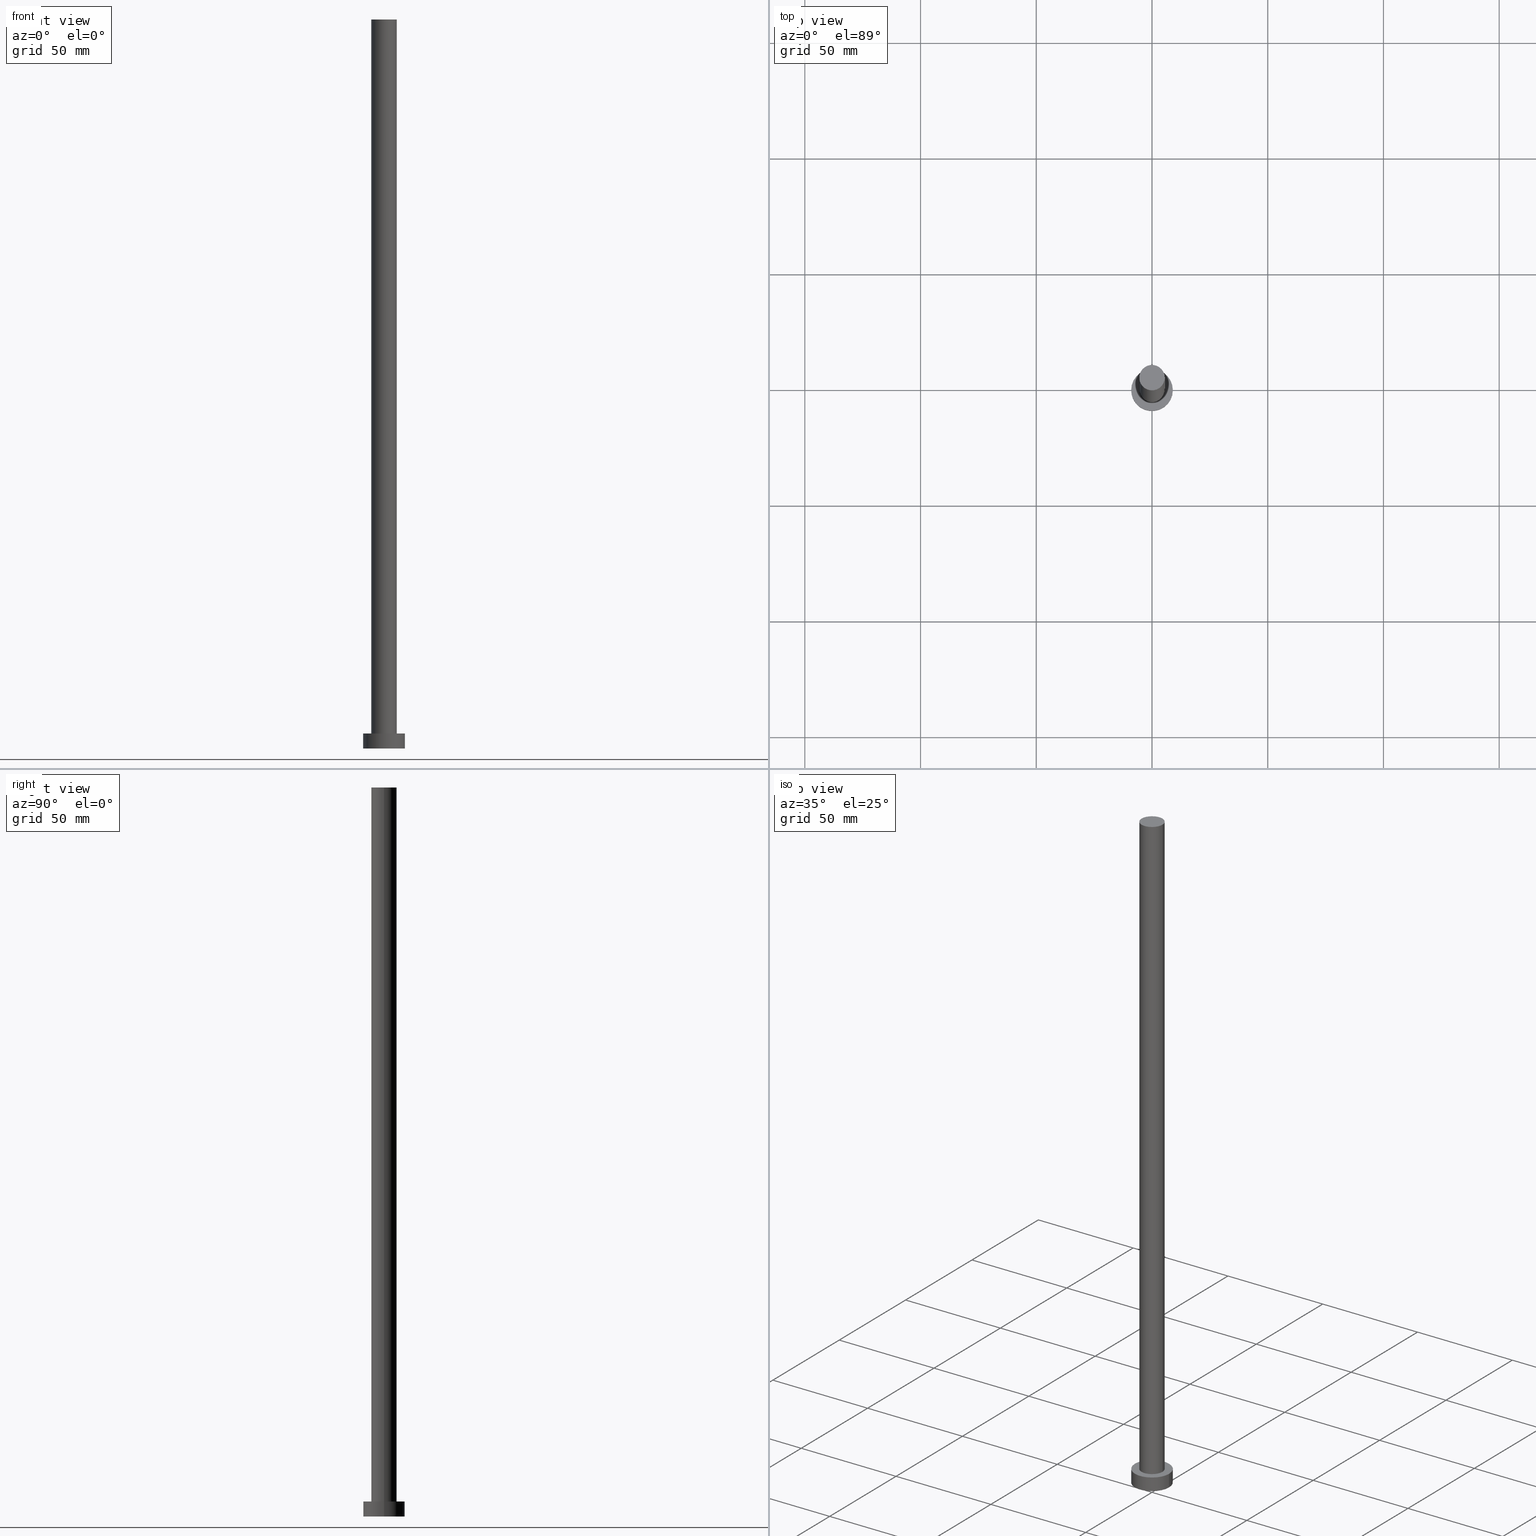
[diagram: canonical four-view strip — front | top / right | iso, engineering-drawing reading convention]
A machine part, canonical four-view strip (front | top / right | iso — engineering-drawing reading convention). The complete STEP part file that produces these views, byte-faithful:
ISO-10303-21;
HEADER;
FILE_DESCRIPTION (( 'STEP AP203' ),
    '1' );
FILE_NAME ('ee31.STEP',
    '2023-02-13T12:19:42',
    ( '' ),
    ( '' ),
    'SwSTEP 2.0',
    'SolidWorks 2019',
    '' );
FILE_SCHEMA (( 'CONFIG_CONTROL_DESIGN' ));
ENDSEC;

DATA;
#1 = CARTESIAN_POINT ( 'NONE',  ( 5.500000000000000000, 6.735557395310441037E-16, 315.0000000000000000 ) ) ;
#2 = CYLINDRICAL_SURFACE ( 'NONE', #96, 5.500000000000000000 ) ;
#3 = CC_DESIGN_PERSON_AND_ORGANIZATION_ASSIGNMENT ( #193, #90, ( #102 ) ) ;
#4 = DIRECTION ( 'NONE',  ( 0.000000000000000000, 0.000000000000000000, 1.000000000000000000 ) ) ;
#5 = ADVANCED_BREP_SHAPE_REPRESENTATION ( 'ee31', ( #154, #229 ), #168 ) ;
#6 = DIRECTION ( 'NONE',  ( 0.000000000000000000, 0.000000000000000000, 1.000000000000000000 ) ) ;
#7 = ORIENTED_EDGE ( 'NONE', *, *, #35, .T. ) ;
#8 = CARTESIAN_POINT ( 'NONE',  ( 0.000000000000000000, 0.000000000000000000, 315.0000000000000000 ) ) ;
#9 = CIRCLE ( 'NONE', #122, 9.000000000000000000 ) ;
#10 = PLANE ( 'NONE',  #133 ) ;
#11 = EDGE_CURVE ( 'NONE', #101, #178, #167, .T. ) ;
#12 = CARTESIAN_POINT ( 'NONE',  ( 0.000000000000000000, 0.000000000000000000, 0.000000000000000000 ) ) ;
#13 = DATE_AND_TIME ( #126, #185 ) ;
#14 = PRODUCT_DEFINITION ( 'NEZN�M�', '', #102, #181 ) ;
#15 = APPROVAL_DATE_TIME ( #30, #63 ) ;
#16 = APPROVAL_STATUS ( 'not_yet_approved' ) ;
#17 = EDGE_LOOP ( 'NONE', ( #105, #248, #179, #210 ) ) ;
#18 = SECURITY_CLASSIFICATION_LEVEL ( 'unclassified' ) ;
#19 = DIRECTION ( 'NONE',  ( 0.000000000000000000, 0.000000000000000000, 1.000000000000000000 ) ) ;
#20 = CARTESIAN_POINT ( 'NONE',  ( 0.000000000000000000, 0.000000000000000000, 315.0000000000000000 ) ) ;
#21 = ORIENTED_EDGE ( 'NONE', *, *, #35, .F. ) ;
#22 = DIRECTION ( 'NONE',  ( 1.000000000000000000, 0.000000000000000000, 0.000000000000000000 ) ) ;
#23 = DIRECTION ( 'NONE',  ( 0.000000000000000000, 0.000000000000000000, 1.000000000000000000 ) ) ;
#24 = EDGE_CURVE ( 'NONE', #101, #212, #144, .T. ) ;
#25 = FACE_OUTER_BOUND ( 'NONE', #141, .T. ) ;
#26 = PRODUCT_RELATED_PRODUCT_CATEGORY ( 'detail', '', ( #83 ) ) ;
#27 = CARTESIAN_POINT ( 'NONE',  ( -5.500000000000000000, 0.000000000000000000, 315.0000000000000000 ) ) ;
#28 = CALENDAR_DATE ( 2023, 13, 2 ) ;
#29 = LOCAL_TIME ( 13, 19, 42.00000000000000000, #194 ) ;
#30 = DATE_AND_TIME ( #28, #174 ) ;
#31 = EDGE_LOOP ( 'NONE', ( #238, #199 ) ) ;
#32 = CC_DESIGN_PERSON_AND_ORGANIZATION_ASSIGNMENT ( #232, #249, ( #83 ) ) ;
#33 = FACE_OUTER_BOUND ( 'NONE', #17, .T. ) ;
#34 = CYLINDRICAL_SURFACE ( 'NONE', #226, 9.000000000000000000 ) ;
#35 = EDGE_CURVE ( 'NONE', #244, #197, #142, .T. ) ;
#36 = ORIENTED_EDGE ( 'NONE', *, *, #111, .F. ) ;
#37 = CIRCLE ( 'NONE', #157, 9.000000000000000000 ) ;
#38 = EDGE_LOOP ( 'NONE', ( #162, #231 ) ) ;
#39 = PERSON_AND_ORGANIZATION ( #118, #202 ) ;
#40 = DIRECTION ( 'NONE',  ( -0.000000000000000000, -0.000000000000000000, -1.000000000000000000 ) ) ;
#41 = AXIS2_PLACEMENT_3D ( 'NONE', #215, #128, #55 ) ;
#42 = CIRCLE ( 'NONE', #143, 5.500000000000000000 ) ;
#43 = CYLINDRICAL_SURFACE ( 'NONE', #57, 9.000000000000000000 ) ;
#44 = ORIENTED_EDGE ( 'NONE', *, *, #108, .F. ) ;
#45 = FACE_OUTER_BOUND ( 'NONE', #125, .T. ) ;
#46 = CARTESIAN_POINT ( 'NONE',  ( 5.500000000000000000, 6.735557395310441037E-16, 315.0000000000000000 ) ) ;
#47 = DIRECTION ( 'NONE',  ( 0.000000000000000000, 0.000000000000000000, 1.000000000000000000 ) ) ;
#48 = DIRECTION ( 'NONE',  ( 1.000000000000000000, 0.000000000000000000, 0.000000000000000000 ) ) ;
#49 = COORDINATED_UNIVERSAL_TIME_OFFSET ( 1, 0, .AHEAD. ) ;
#50 = PERSON_AND_ORGANIZATION_ROLE ( 'design_supplier' ) ;
#51 = ADVANCED_FACE ( 'NONE', ( #77 ), #2, .T. ) ;
#52 = MECHANICAL_CONTEXT ( 'NONE', #176, 'mechanical' ) ;
#53 = VECTOR ( 'NONE', #138, 1000.000000000000000 ) ;
#54 = EDGE_CURVE ( 'NONE', #197, #244, #207, .T. ) ;
#55 = DIRECTION ( 'NONE',  ( 1.000000000000000000, 0.000000000000000000, 0.000000000000000000 ) ) ;
#56 = EDGE_LOOP ( 'NONE', ( #89, #36, #146, #94 ) ) ;
#57 = AXIS2_PLACEMENT_3D ( 'NONE', #119, #120, #82 ) ;
#58 = EDGE_CURVE ( 'NONE', #244, #236, #112, .T. ) ;
#59 = PLANE ( 'NONE',  #74 ) ;
#60 = UNCERTAINTY_MEASURE_WITH_UNIT (LENGTH_MEASURE( 1.000000000000000082E-05 ), #225, 'distance_accuracy_value', 'NONE');
#61 = CARTESIAN_POINT ( 'NONE',  ( 0.000000000000000000, 0.000000000000000000, 315.0000000000000000 ) ) ;
#62 = DIRECTION ( 'NONE',  ( -1.000000000000000000, 0.000000000000000000, 0.000000000000000000 ) ) ;
#63 = APPROVAL ( #124, 'NEUR�EN�' ) ;
#64 = DIRECTION ( 'NONE',  ( 1.000000000000000000, 0.000000000000000000, 0.000000000000000000 ) ) ;
#65 = DIRECTION ( 'NONE',  ( 0.000000000000000000, 0.000000000000000000, 1.000000000000000000 ) ) ;
#66 = CC_DESIGN_PERSON_AND_ORGANIZATION_ASSIGNMENT ( #189, #166, ( #14 ) ) ;
#67 = CALENDAR_DATE ( 2023, 13, 2 ) ;
#68 = DATE_AND_TIME ( #164, #29 ) ;
#69 = CC_DESIGN_APPROVAL ( #63, ( #102 ) ) ;
#70 = CC_DESIGN_PERSON_AND_ORGANIZATION_ASSIGNMENT ( #252, #50, ( #102 ) ) ;
#71 = PERSON_AND_ORGANIZATION_ROLE ( 'classification_officer' ) ;
#72 = ORIENTED_EDGE ( 'NONE', *, *, #24, .T. ) ;
#73 = SECURITY_CLASSIFICATION ( '', '', #18 ) ;
#74 = AXIS2_PLACEMENT_3D ( 'NONE', #152, #218, #206 ) ;
#75 = DIRECTION ( 'NONE',  ( -0.000000000000000000, -0.000000000000000000, -1.000000000000000000 ) ) ;
#76 = APPROVAL_PERSON_ORGANIZATION ( #250, #230, #109 ) ;
#77 = FACE_OUTER_BOUND ( 'NONE', #56, .T. ) ;
#78 = CARTESIAN_POINT ( 'NONE',  ( 9.000000000000000000, 1.102182119232617517E-15, 6.500000000000000000 ) ) ;
#79 = CARTESIAN_POINT ( 'NONE',  ( 5.500000000000000000, 6.735557395310441037E-16, 6.500000000000000000 ) ) ;
#80 = ORIENTED_EDGE ( 'NONE', *, *, #11, .F. ) ;
#81 = CARTESIAN_POINT ( 'NONE',  ( 0.000000000000000000, 0.000000000000000000, 6.500000000000000000 ) ) ;
#82 = DIRECTION ( 'NONE',  ( -1.000000000000000000, 0.000000000000000000, 0.000000000000000000 ) ) ;
#83 = PRODUCT ( 'ee31', 'ee31', '', ( #52 ) ) ;
#84 = CARTESIAN_POINT ( 'NONE',  ( 9.000000000000000000, 1.102182119232617517E-15, 6.500000000000000000 ) ) ;
#85 = CC_DESIGN_DATE_AND_TIME_ASSIGNMENT ( #165, #150, ( #73 ) ) ;
#86 = CC_DESIGN_APPROVAL ( #230, ( #14 ) ) ;
#87 = PERSON_AND_ORGANIZATION ( #118, #202 ) ;
#88 = CARTESIAN_POINT ( 'NONE',  ( 0.000000000000000000, 0.000000000000000000, 0.000000000000000000 ) ) ;
#89 = ORIENTED_EDGE ( 'NONE', *, *, #24, .F. ) ;
#90 = PERSON_AND_ORGANIZATION_ROLE ( 'creator' ) ;
#91 = ADVANCED_FACE ( 'NONE', ( #33 ), #34, .T. ) ;
#92 = PERSON_AND_ORGANIZATION ( #118, #202 ) ;
#93 = DIRECTION ( 'NONE',  ( 0.000000000000000000, 0.000000000000000000, 1.000000000000000000 ) ) ;
#94 = ORIENTED_EDGE ( 'NONE', *, *, #184, .T. ) ;
#95 = AXIS2_PLACEMENT_3D ( 'NONE', #8, #243, #160 ) ;
#96 = AXIS2_PLACEMENT_3D ( 'NONE', #151, #171, #241 ) ;
#97 = DIRECTION ( 'NONE',  ( 1.000000000000000000, 0.000000000000000000, 0.000000000000000000 ) ) ;
#98 = DATE_AND_TIME ( #200, #254 ) ;
#99 = DIRECTION ( 'NONE',  ( 0.000000000000000000, 0.000000000000000000, 1.000000000000000000 ) ) ;
#100 = DIRECTION ( 'NONE',  ( -0.000000000000000000, -0.000000000000000000, -1.000000000000000000 ) ) ;
#101 = VERTEX_POINT ( 'NONE', #46 ) ;
#102 = PRODUCT_DEFINITION_FORMATION_WITH_SPECIFIED_SOURCE ( 'LIBOVOLN�', '', #83, .NOT_KNOWN. ) ;
#103 = CARTESIAN_POINT ( 'NONE',  ( -9.000000000000000000, 0.000000000000000000, 0.000000000000000000 ) ) ;
#104 = CARTESIAN_POINT ( 'NONE',  ( -5.500000000000000000, 0.000000000000000000, 6.500000000000000000 ) ) ;
#105 = ORIENTED_EDGE ( 'NONE', *, *, #54, .F. ) ;
#106 = ADVANCED_FACE ( 'NONE', ( #132 ), #59, .F. ) ;
#107 = APPLICATION_PROTOCOL_DEFINITION ( 'international standard', 'config_control_design', 1994, #176 ) ;
#108 = EDGE_CURVE ( 'NONE', #178, #216, #245, .T. ) ;
#109 = APPROVAL_ROLE ( '' ) ;
#110 = VERTEX_POINT ( 'NONE', #182 ) ;
#111 = EDGE_CURVE ( 'NONE', #178, #101, #153, .T. ) ;
#112 = LINE ( 'NONE', #214, #219 ) ;
#113 = AXIS2_PLACEMENT_3D ( 'NONE', #20, #93, #22 ) ;
#114 = ADVANCED_FACE ( 'NONE', ( #137 ), #220, .T. ) ;
#115 = ORIENTED_EDGE ( 'NONE', *, *, #251, .F. ) ;
#116 = COORDINATED_UNIVERSAL_TIME_OFFSET ( 1, 0, .AHEAD. ) ;
#117 = FACE_OUTER_BOUND ( 'NONE', #156, .T. ) ;
#118 = PERSON ( 'NEUR�EN�', 'NEUR�EN�', 'NEUR�EN�', ('NEUR�EN�'), ('NEUR�EN�'), ('NEUR�EN�') ) ;
#119 = CARTESIAN_POINT ( 'NONE',  ( 0.000000000000000000, 0.000000000000000000, 6.500000000000000000 ) ) ;
#120 = DIRECTION ( 'NONE',  ( -0.000000000000000000, -0.000000000000000000, -1.000000000000000000 ) ) ;
#121 = PLANE ( 'NONE',  #149 ) ;
#122 = AXIS2_PLACEMENT_3D ( 'NONE', #123, #99, #203 ) ;
#123 = CARTESIAN_POINT ( 'NONE',  ( 0.000000000000000000, 0.000000000000000000, 0.000000000000000000 ) ) ;
#124 = APPROVAL_STATUS ( 'not_yet_approved' ) ;
#125 = EDGE_LOOP ( 'NONE', ( #115, #21, #177, #239 ) ) ;
#126 = CALENDAR_DATE ( 2023, 13, 2 ) ;
#127 = ADVANCED_FACE ( 'NONE', ( #209, #117 ), #10, .T. ) ;
#128 = DIRECTION ( 'NONE',  ( 0.000000000000000000, 0.000000000000000000, 1.000000000000000000 ) ) ;
#129 = ORIENTED_EDGE ( 'NONE', *, *, #111, .T. ) ;
#130 = EDGE_CURVE ( 'NONE', #212, #216, #42, .T. ) ;
#131 = APPROVAL_STATUS ( 'not_yet_approved' ) ;
#132 = FACE_OUTER_BOUND ( 'NONE', #31, .T. ) ;
#133 = AXIS2_PLACEMENT_3D ( 'NONE', #81, #47, #201 ) ;
#134 = CARTESIAN_POINT ( 'NONE',  ( -5.500000000000000000, 0.000000000000000000, 315.0000000000000000 ) ) ;
#135 = CC_DESIGN_APPROVAL ( #255, ( #73 ) ) ;
#136 = DIRECTION ( 'NONE',  ( 1.000000000000000000, 0.000000000000000000, 0.000000000000000000 ) ) ;
#137 = FACE_OUTER_BOUND ( 'NONE', #183, .T. ) ;
#138 = DIRECTION ( 'NONE',  ( -0.000000000000000000, -0.000000000000000000, -1.000000000000000000 ) ) ;
#139 = APPROVAL_DATE_TIME ( #98, #255 ) ;
#140 = APPROVAL_PERSON_ORGANIZATION ( #87, #63, #169 ) ;
#141 = EDGE_LOOP ( 'NONE', ( #129, #188 ) ) ;
#142 = CIRCLE ( 'NONE', #190, 9.000000000000000000 ) ;
#143 = AXIS2_PLACEMENT_3D ( 'NONE', #158, #23, #136 ) ;
#144 = LINE ( 'NONE', #1, #253 ) ;
#145 = EDGE_CURVE ( 'NONE', #110, #236, #9, .T. ) ;
#146 = ORIENTED_EDGE ( 'NONE', *, *, #108, .T. ) ;
#147 = CLOSED_SHELL ( 'NONE', ( #114, #91, #205, #127, #106, #51, #173 ) ) ;
#148 = CARTESIAN_POINT ( 'NONE',  ( 0.000000000000000000, 0.000000000000000000, 6.500000000000000000 ) ) ;
#149 = AXIS2_PLACEMENT_3D ( 'NONE', #208, #6, #180 ) ;
#150 = DATE_TIME_ROLE ( 'classification_date' ) ;
#151 = CARTESIAN_POINT ( 'NONE',  ( 0.000000000000000000, 0.000000000000000000, 315.0000000000000000 ) ) ;
#152 = CARTESIAN_POINT ( 'NONE',  ( 0.000000000000000000, 0.000000000000000000, 0.000000000000000000 ) ) ;
#153 = CIRCLE ( 'NONE', #95, 5.500000000000000000 ) ;
#154 = MANIFOLD_SOLID_BREP ( 'P�idat vysunut�m3', #147 ) ;
#155 = LINE ( 'NONE', #84, #53 ) ;
#156 = EDGE_LOOP ( 'NONE', ( #7, #204 ) ) ;
#157 = AXIS2_PLACEMENT_3D ( 'NONE', #12, #4, #64 ) ;
#158 = CARTESIAN_POINT ( 'NONE',  ( 0.000000000000000000, 0.000000000000000000, 6.500000000000000000 ) ) ;
#159 = SHAPE_DEFINITION_REPRESENTATION ( #222, #5 ) ;
#160 = DIRECTION ( 'NONE',  ( 1.000000000000000000, 0.000000000000000000, 0.000000000000000000 ) ) ;
#161 =( NAMED_UNIT ( * ) PLANE_ANGLE_UNIT ( ) SI_UNIT ( $, .RADIAN. ) );
#162 = ORIENTED_EDGE ( 'NONE', *, *, #184, .F. ) ;
#163 = APPROVAL_ROLE ( '' ) ;
#164 = CALENDAR_DATE ( 2023, 13, 2 ) ;
#165 = DATE_AND_TIME ( #67, #221 ) ;
#166 = PERSON_AND_ORGANIZATION_ROLE ( 'creator' ) ;
#167 = CIRCLE ( 'NONE', #113, 5.500000000000000000 ) ;
#168 =( GEOMETRIC_REPRESENTATION_CONTEXT ( 3 ) GLOBAL_UNCERTAINTY_ASSIGNED_CONTEXT ( ( #60 ) ) GLOBAL_UNIT_ASSIGNED_CONTEXT ( ( #225, #161, #235 ) ) REPRESENTATION_CONTEXT ( 'NONE', 'WORKASPACE' ) );
#169 = APPROVAL_ROLE ( '' ) ;
#170 = EDGE_CURVE ( 'NONE', #236, #110, #37, .T. ) ;
#171 = DIRECTION ( 'NONE',  ( -0.000000000000000000, -0.000000000000000000, -1.000000000000000000 ) ) ;
#172 = AXIS2_PLACEMENT_3D ( 'NONE', #61, #40, #62 ) ;
#173 = ADVANCED_FACE ( 'NONE', ( #25 ), #121, .T. ) ;
#174 = LOCAL_TIME ( 13, 19, 42.00000000000000000, #211 ) ;
#175 = CARTESIAN_POINT ( 'NONE',  ( 0.000000000000000000, 0.000000000000000000, 6.500000000000000000 ) ) ;
#176 = APPLICATION_CONTEXT ( 'configuration controlled 3d designs of mechanical parts and assemblies' ) ;
#177 = ORIENTED_EDGE ( 'NONE', *, *, #58, .T. ) ;
#178 = VERTEX_POINT ( 'NONE', #134 ) ;
#179 = ORIENTED_EDGE ( 'NONE', *, *, #145, .T. ) ;
#180 = DIRECTION ( 'NONE',  ( 1.000000000000000000, 0.000000000000000000, -0.000000000000000000 ) ) ;
#181 = DESIGN_CONTEXT ( 'detailed design', #233, 'design' ) ;
#182 = CARTESIAN_POINT ( 'NONE',  ( 9.000000000000000000, 1.102182119232617517E-15, 0.000000000000000000 ) ) ;
#183 = EDGE_LOOP ( 'NONE', ( #80, #72, #217, #44 ) ) ;
#184 = EDGE_CURVE ( 'NONE', #216, #212, #191, .T. ) ;
#185 = LOCAL_TIME ( 13, 19, 42.00000000000000000, #49 ) ;
#186 = DIRECTION ( 'NONE',  ( -0.000000000000000000, -0.000000000000000000, -1.000000000000000000 ) ) ;
#187 = CARTESIAN_POINT ( 'NONE',  ( -9.000000000000000000, 0.000000000000000000, 6.500000000000000000 ) ) ;
#188 = ORIENTED_EDGE ( 'NONE', *, *, #11, .T. ) ;
#189 = PERSON_AND_ORGANIZATION ( #118, #202 ) ;
#190 = AXIS2_PLACEMENT_3D ( 'NONE', #148, #240, #97 ) ;
#191 = CIRCLE ( 'NONE', #196, 5.500000000000000000 ) ;
#192 = APPROVAL_DATE_TIME ( #68, #230 ) ;
#193 = PERSON_AND_ORGANIZATION ( #118, #202 ) ;
#194 = COORDINATED_UNIVERSAL_TIME_OFFSET ( 1, 0, .AHEAD. ) ;
#195 = CC_DESIGN_PERSON_AND_ORGANIZATION_ASSIGNMENT ( #92, #71, ( #73 ) ) ;
#196 = AXIS2_PLACEMENT_3D ( 'NONE', #224, #65, #227 ) ;
#197 = VERTEX_POINT ( 'NONE', #78 ) ;
#198 = DIRECTION ( 'NONE',  ( -0.000000000000000000, -0.000000000000000000, -1.000000000000000000 ) ) ;
#199 = ORIENTED_EDGE ( 'NONE', *, *, #145, .F. ) ;
#200 = CALENDAR_DATE ( 2023, 13, 2 ) ;
#201 = DIRECTION ( 'NONE',  ( 1.000000000000000000, 0.000000000000000000, -0.000000000000000000 ) ) ;
#202 = ORGANIZATION ( 'NEUR�EN�', 'NEUR�EN�', '' ) ;
#203 = DIRECTION ( 'NONE',  ( 1.000000000000000000, 0.000000000000000000, 0.000000000000000000 ) ) ;
#204 = ORIENTED_EDGE ( 'NONE', *, *, #54, .T. ) ;
#205 = ADVANCED_FACE ( 'NONE', ( #45 ), #43, .T. ) ;
#206 = DIRECTION ( 'NONE',  ( 1.000000000000000000, 0.000000000000000000, -0.000000000000000000 ) ) ;
#207 = CIRCLE ( 'NONE', #41, 9.000000000000000000 ) ;
#208 = CARTESIAN_POINT ( 'NONE',  ( 0.000000000000000000, 0.000000000000000000, 315.0000000000000000 ) ) ;
#209 = FACE_BOUND ( 'NONE', #38, .T. ) ;
#210 = ORIENTED_EDGE ( 'NONE', *, *, #58, .F. ) ;
#211 = COORDINATED_UNIVERSAL_TIME_OFFSET ( 1, 0, .AHEAD. ) ;
#212 = VERTEX_POINT ( 'NONE', #79 ) ;
#213 = COORDINATED_UNIVERSAL_TIME_OFFSET ( 1, 0, .AHEAD. ) ;
#214 = CARTESIAN_POINT ( 'NONE',  ( -9.000000000000000000, 0.000000000000000000, 6.500000000000000000 ) ) ;
#215 = CARTESIAN_POINT ( 'NONE',  ( 0.000000000000000000, 0.000000000000000000, 6.500000000000000000 ) ) ;
#216 = VERTEX_POINT ( 'NONE', #104 ) ;
#217 = ORIENTED_EDGE ( 'NONE', *, *, #130, .T. ) ;
#218 = DIRECTION ( 'NONE',  ( 0.000000000000000000, 0.000000000000000000, 1.000000000000000000 ) ) ;
#219 = VECTOR ( 'NONE', #198, 1000.000000000000000 ) ;
#220 = CYLINDRICAL_SURFACE ( 'NONE', #172, 5.500000000000000000 ) ;
#221 = LOCAL_TIME ( 13, 19, 42.00000000000000000, #213 ) ;
#222 = PRODUCT_DEFINITION_SHAPE ( 'NONE', 'NONE',  #14 ) ;
#223 = CC_DESIGN_DATE_AND_TIME_ASSIGNMENT ( #13, #234, ( #14 ) ) ;
#224 = CARTESIAN_POINT ( 'NONE',  ( 0.000000000000000000, 0.000000000000000000, 6.500000000000000000 ) ) ;
#225 =( LENGTH_UNIT ( ) NAMED_UNIT ( * ) SI_UNIT ( .MILLI., .METRE. ) );
#226 = AXIS2_PLACEMENT_3D ( 'NONE', #175, #186, #242 ) ;
#227 = DIRECTION ( 'NONE',  ( 1.000000000000000000, 0.000000000000000000, 0.000000000000000000 ) ) ;
#228 = APPROVAL_PERSON_ORGANIZATION ( #39, #255, #163 ) ;
#229 = AXIS2_PLACEMENT_3D ( 'NONE', #88, #19, #48 ) ;
#230 = APPROVAL ( #16, 'NEUR�EN�' ) ;
#231 = ORIENTED_EDGE ( 'NONE', *, *, #130, .F. ) ;
#232 = PERSON_AND_ORGANIZATION ( #118, #202 ) ;
#233 = APPLICATION_CONTEXT ( 'configuration controlled 3d designs of mechanical parts and assemblies' ) ;
#234 = DATE_TIME_ROLE ( 'creation_date' ) ;
#235 =( NAMED_UNIT ( * ) SI_UNIT ( $, .STERADIAN. ) SOLID_ANGLE_UNIT ( ) );
#236 = VERTEX_POINT ( 'NONE', #103 ) ;
#237 = CC_DESIGN_SECURITY_CLASSIFICATION ( #73, ( #102 ) ) ;
#238 = ORIENTED_EDGE ( 'NONE', *, *, #170, .F. ) ;
#239 = ORIENTED_EDGE ( 'NONE', *, *, #170, .T. ) ;
#240 = DIRECTION ( 'NONE',  ( 0.000000000000000000, 0.000000000000000000, 1.000000000000000000 ) ) ;
#241 = DIRECTION ( 'NONE',  ( -1.000000000000000000, 0.000000000000000000, 0.000000000000000000 ) ) ;
#242 = DIRECTION ( 'NONE',  ( -1.000000000000000000, 0.000000000000000000, 0.000000000000000000 ) ) ;
#243 = DIRECTION ( 'NONE',  ( 0.000000000000000000, 0.000000000000000000, 1.000000000000000000 ) ) ;
#244 = VERTEX_POINT ( 'NONE', #187 ) ;
#245 = LINE ( 'NONE', #27, #246 ) ;
#246 = VECTOR ( 'NONE', #100, 1000.000000000000000 ) ;
#247 = APPLICATION_PROTOCOL_DEFINITION ( 'international standard', 'config_control_design', 1994, #233 ) ;
#248 = ORIENTED_EDGE ( 'NONE', *, *, #251, .T. ) ;
#249 = PERSON_AND_ORGANIZATION_ROLE ( 'design_owner' ) ;
#250 = PERSON_AND_ORGANIZATION ( #118, #202 ) ;
#251 = EDGE_CURVE ( 'NONE', #197, #110, #155, .T. ) ;
#252 = PERSON_AND_ORGANIZATION ( #118, #202 ) ;
#253 = VECTOR ( 'NONE', #75, 1000.000000000000000 ) ;
#254 = LOCAL_TIME ( 13, 19, 42.00000000000000000, #116 ) ;
#255 = APPROVAL ( #131, 'NEUR�EN�' ) ;
ENDSEC;
END-ISO-10303-21;
